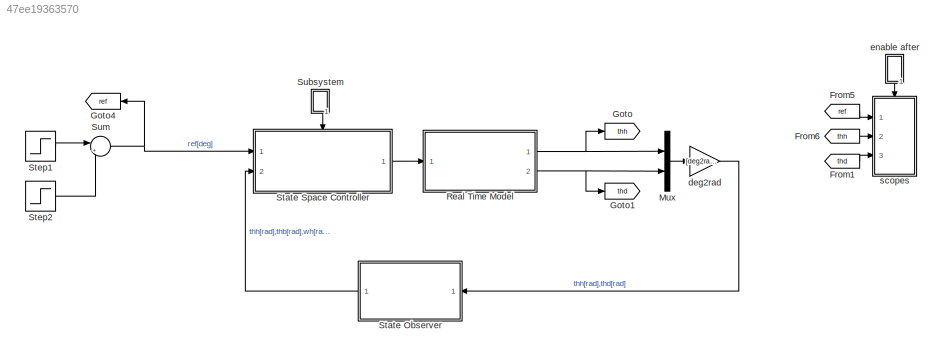
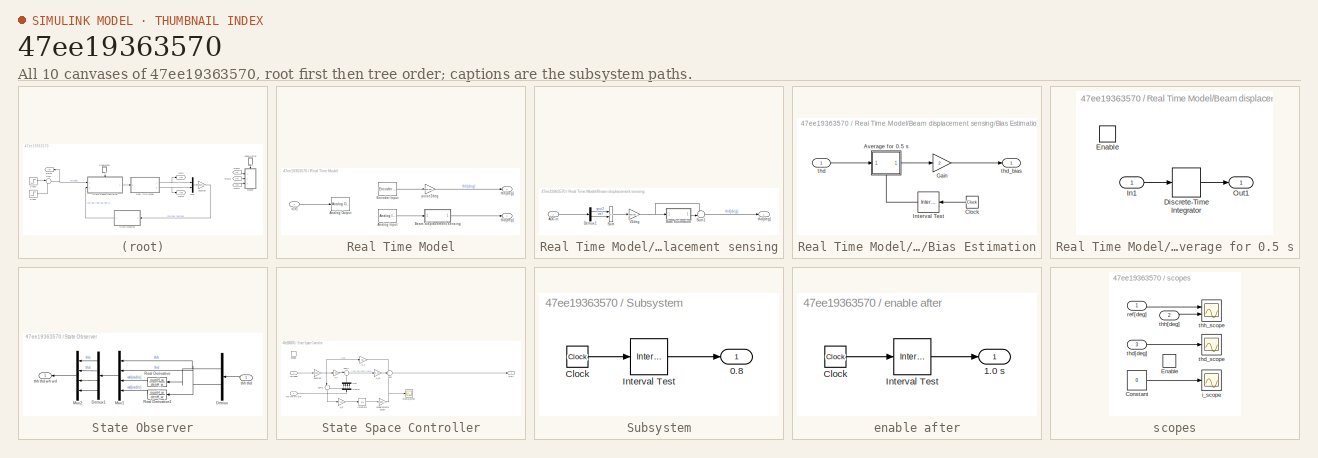
[diagram: thumbnail index - all 10 canvases of the model, root first then tree order]
MODEL slx_47ee19363570
KIND model
CONFIG AbsTol = auto
CONFIG EnableMultiTasking = off
CONFIG FixedStep = 0.001
CONFIG MaxStep = auto
CONFIG MinStep = auto
CONFIG RelTol = 1e-3
CONFIG SampleTimeConstraint = Unconstrained
CONFIG SolverName = ode3
CONFIG StartTime = 0.0
CONFIG StopTime = 5
BLOCK [From] From1
  GotoTag = thd
BLOCK [From] From5
  GotoTag = ref
BLOCK [From] From6
  GotoTag = thh
BLOCK [Goto] Goto
  GotoTag = thh
BLOCK [Goto] Goto1
  GotoTag = thd
BLOCK [Goto] Goto4
  GotoTag = ref
  NameLocation = top
BLOCK [Mux] Mux
  DisplayOption = bar
  Inputs = 2
  Ports = [2, 1]
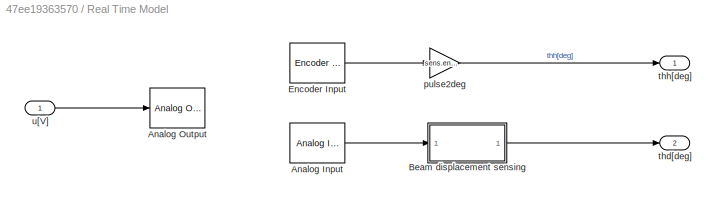
BLOCK [SubSystem] Real Time Model
  Ports = [1, 2]
  RequestExecContextInheritance = off
BLOCK [Reference] Real Time Model/Analog Input  REF=sldrtlib/Analog Input
  AttributesFormatString = National Instruments\nPCI-6221 [auto]
  Ports = [0, 1]
  SourceBlock = sldrtlib/Analog Input
  SourceProductBaseCode = WT
  SourceType = Simulink Desktop Real-Time Analog Input
BLOCK [Reference] Real Time Model/Analog Output  REF=sldrtlib/Analog Output
  AttributesFormatString = National Instruments\nPCI-6221 [auto]
  Ports = [1]
  SourceBlock = sldrtlib/Analog Output
  SourceProductBaseCode = WT
  SourceType = Simulink Desktop Real-Time Analog Output
BLOCK [SubSystem] Real Time Model/Beam displacement sensing
  Ports = [1, 1]
  RequestExecContextInheritance = off
BLOCK [Inport] Real Time Model/Beam displacement sensing/ADC in
BLOCK [SubSystem] Real Time Model/Beam displacement sensing/Bias Estimation
  Ports = [1, 1]
  RequestExecContextInheritance = off
BLOCK [SubSystem] Real Time Model/Beam displacement sensing/Bias Estimation/Average for 0.5 s
  NameLocation = top
  Ports = [1, 1, 1]
  RequestExecContextInheritance = off
BLOCK [DiscreteIntegrator] Real Time Model/Beam displacement sensing/Bias Estimation/Average for 0.5 s/Discrete-Time Integrator
  ICPrevOutput = DiscIntNeverNeededParam
  ICPrevScaledInput = DiscIntNeverNeededParam
  InitialConditionSetting = Auto
  Ports = [1, 1]
  SampleTime = Ts
BLOCK [EnablePort] Real Time Model/Beam displacement sensing/Bias Estimation/Average for 0.5 s/Enable
  Ports = []
BLOCK [Inport] Real Time Model/Beam displacement sensing/Bias Estimation/Average for 0.5 s/In1
BLOCK [Outport] Real Time Model/Beam displacement sensing/Bias Estimation/Average for 0.5 s/Out1
BLOCK [Clock] Real Time Model/Beam displacement sensing/Bias Estimation/Clock
  NameLocation = top
BLOCK [Gain] Real Time Model/Beam displacement sensing/Bias Estimation/Gain
  Gain = 2
BLOCK [Reference] Real Time Model/Beam displacement sensing/Bias Estimation/Interval Test  REF=simulink/Logic and Bit
Operations/Interval Test
  NameLocation = top
  Ports = [1, 1]
  SourceBlock = simulink/Logic and Bit\nOperations/Interval Test
  SourceProductBaseCode = SL
  SourceType = Interval Test
BLOCK [Inport] Real Time Model/Beam displacement sensing/Bias Estimation/thd
BLOCK [Outport] Real Time Model/Beam displacement sensing/Bias Estimation/thd_bias
BLOCK [Demux] Real Time Model/Beam displacement sensing/Demux1
  Outputs = 2
  Ports = [1, 2]
BLOCK [Sum] Real Time Model/Beam displacement sensing/Sum
  IconShape = rectangular
  Inputs = +-
  Ports = [2, 1]
BLOCK [Sum] Real Time Model/Beam displacement sensing/Sum1
  Inputs = +-|
  Ports = [2, 1]
BLOCK [Gain] Real Time Model/Beam displacement sensing/V2deg
  Gain = sens.pot2.V2deg
BLOCK [Outport] Real Time Model/Beam displacement sensing/thd[deg]
BLOCK [Reference] Real Time Model/Encoder Input  REF=sldrtlib/Encoder Input
  AttributesFormatString = National Instruments\nPCI-6221 [auto]
  Ports = [0, 1]
  SourceBlock = sldrtlib/Encoder Input
  SourceProductBaseCode = WT
  SourceType = Simulink Desktop Real-Time Encoder Input
BLOCK [Gain] Real Time Model/pulse2deg
  Gain = sens.enc.pulse2deg
  NameLocation = top
BLOCK [Outport] Real Time Model/thd[deg]
  Port = 2
BLOCK [Outport] Real Time Model/thh[deg]
BLOCK [Inport] Real Time Model/u[V]
BLOCK [SubSystem] State Observer
  NameLocation = top
  Ports = [1, 1]
  RequestExecContextInheritance = off
BLOCK [Demux] State Observer/Demux
  NameLocation = top
  Outputs = 2
  Ports = [1, 2]
BLOCK [Demux] State Observer/Demux1
  NameLocation = top
  Ports = [1, 4]
BLOCK [Mux] State Observer/Mux1
  DisplayOption = bar
  NameLocation = top
  Ports = [4, 1]
BLOCK [Mux] State Observer/Mux2
  DisplayOption = bar
  NameLocation = top
  Ports = [4, 1]
BLOCK [TransferFcn] State Observer/Real Derivative
  Denominator = denH_w
  NameLocation = top
  Numerator = numH_w
BLOCK [TransferFcn] State Observer/Real Derivative1
  Denominator = denH_w
  NameLocation = top
  Numerator = numH_w
BLOCK [Inport] State Observer/thh thd
  NameLocation = top
BLOCK [Outport] State Observer/thh thd wh wd
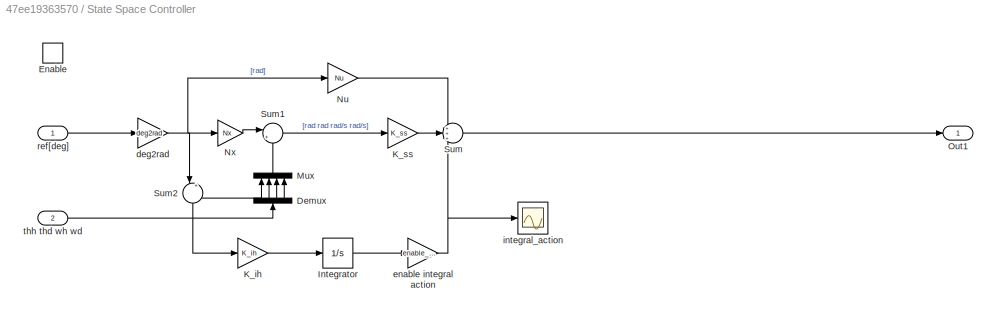
BLOCK [SubSystem] State Space Controller
  Ports = [2, 1, 1]
  RequestExecContextInheritance = off
BLOCK [Demux] State Space Controller/Demux
  NameLocation = right
  Ports = [1, 4]
BLOCK [EnablePort] State Space Controller/Enable
  Ports = []
BLOCK [Integrator] State Space Controller/Integrator
  Ports = [1, 1]
BLOCK [Gain] State Space Controller/K_ih
  Gain = K_ih
BLOCK [Gain] State Space Controller/K_ss
  Gain = K_ss
  Multiplication = Matrix(K*u) (u vector)
BLOCK [Mux] State Space Controller/Mux
  DisplayOption = bar
  NameLocation = right
  Ports = [4, 1]
BLOCK [Gain] State Space Controller/Nu
  Gain = Nu
  Multiplication = Matrix(K*u) (u vector)
BLOCK [Gain] State Space Controller/Nx
  Gain = Nx
  Multiplication = Matrix(K*u) (u vector)
BLOCK [Outport] State Space Controller/Out1
BLOCK [Sum] State Space Controller/Sum
  Inputs = +++
  Ports = [3, 1]
BLOCK [Sum] State Space Controller/Sum1
  Inputs = |+-
  Ports = [2, 1]
BLOCK [Sum] State Space Controller/Sum2
  Inputs = |+-
  NameLocation = left
  Ports = [2, 1]
BLOCK [Gain] State Space Controller/deg2rad
  Gain = deg2rad
BLOCK [Gain] State Space Controller/enable integral action
  Gain = enable_integral_action
BLOCK [Scope] State Space Controller/integral_action
  Floating = off
  NumInputPorts = 1
  Ports = [1]
  ScopeSpecificationString = Simulink.scopes.TimeScopeBlockCfg('CurrentConfiguration', extmgr.ConfigurationSet(extmgr.Configuration('Core','General UI',true),extmgr.Configuration('Core','Source UI',true),extmgr.Configuration('Sources','WiredSimulink',true,'DataLoggingVariableName','ScopeData1'),extmgr.Configuration('Visuals','Time Domain',true,'SerializedDisplays',{struct('MinYLimReal','-0.02869','MaxYLimReal','0.25824','YLab...<+1408ch>
BLOCK [Inport] State Space Controller/ref[deg]
BLOCK [Inport] State Space Controller/thh thd wh wd
  NameLocation = top
  Port = 2
BLOCK [Step] Step1
  After = step_height
  SampleTime = 0
  Time = step_start_time
BLOCK [Step] Step2
  After = -step_height
  SampleTime = 0
  Time = step_start_time+5
BLOCK [SubSystem] Subsystem
  NameLocation = left
  Ports = [0, 1]
  RequestExecContextInheritance = off
BLOCK [Outport] Subsystem/0.8
BLOCK [Clock] Subsystem/Clock
BLOCK [Reference] Subsystem/Interval Test  REF=simulink/Logic and Bit
Operations/Interval Test
  Ports = [1, 1]
  SourceBlock = simulink/Logic and Bit\nOperations/Interval Test
  SourceProductBaseCode = SL
  SourceType = Interval Test
BLOCK [Sum] Sum
  Inputs = |++
  Ports = [2, 1]
BLOCK [Gain] deg2rad
  Gain = [deg2rad 0; 0 deg2rad]
  Multiplication = Matrix(K*u) (u vector)
BLOCK [SubSystem] enable after
  NameLocation = left
  Ports = [0, 1]
  RequestExecContextInheritance = off
BLOCK [Outport] enable after/1.0 s
BLOCK [Clock] enable after/Clock
BLOCK [Reference] enable after/Interval Test  REF=simulink/Logic and Bit
Operations/Interval Test
  Ports = [1, 1]
  SourceBlock = simulink/Logic and Bit\nOperations/Interval Test
  SourceProductBaseCode = SL
  SourceType = Interval Test
BLOCK [SubSystem] scopes
  Ports = [3, 0, 1]
  RequestExecContextInheritance = off
BLOCK [Constant] scopes/Constant
  Value = 0
BLOCK [EnablePort] scopes/Enable
  Ports = []
BLOCK [Scope] scopes/i_scope
  Floating = off
  NumInputPorts = 1
  Ports = [1]
  ScopeSpecificationString = Simulink.scopes.TimeScopeBlockCfg('CurrentConfiguration', extmgr.ConfigurationSet(extmgr.Configuration('Core','General UI',true),extmgr.Configuration('Core','Source UI',true),extmgr.Configuration('Sources','WiredSimulink',true,'DataLoggingVariableName','i_scope1','DataLogging',true,'DataLoggingSaveFormat','StructureWithTime'),extmgr.Configuration('Visuals','Time Domain',true,'SerializedDisplays',{...<+1420ch>
BLOCK [Inport] scopes/ref[deg]
BLOCK [Inport] scopes/thd[deg]
  Port = 3
BLOCK [Scope] scopes/thd_scope
  Floating = off
  NumInputPorts = 1
  Ports = [1]
  ScopeSpecificationString = Simulink.scopes.TimeScopeBlockCfg('CurrentConfiguration', extmgr.ConfigurationSet(extmgr.Configuration('Core','General UI',true),extmgr.Configuration('Core','Source UI',true),extmgr.Configuration('Sources','WiredSimulink',true,'DataLoggingVariableName','thd_scope1','DataLogging',true,'DataLoggingSaveFormat','StructureWithTime'),extmgr.Configuration('Visuals','Time Domain',true,'SerializedDisplays'...<+1450ch>
BLOCK [Inport] scopes/thh[deg]
  Port = 2
BLOCK [Scope] scopes/thh_scope
  Floating = off
  NumInputPorts = 2
  Ports = [2]
  ScopeSpecificationString = Simulink.scopes.TimeScopeBlockCfg('CurrentConfiguration', extmgr.ConfigurationSet(extmgr.Configuration('Core','General UI',true),extmgr.Configuration('Core','Source UI',true),extmgr.Configuration('Sources','WiredSimulink',true,'DataLoggingVariableName','thh_scope1','DataLogging',true,'DataLoggingSaveFormat','StructureWithTime'),extmgr.Configuration('Visuals','Time Domain',true,'SerializedDisplays'...<+1448ch>
LINE From1:1 -> scopes:3
LINE From5:1 -> scopes:1
LINE From6:1 -> scopes:2
LINE Mux:1 -> deg2rad:1
LINE Real Time Model/Analog Input:1 -> Real Time Model/Beam displacement sensing:1
LINE Real Time Model/Beam displacement sensing/ADC in:1 -> Real Time Model/Beam displacement sensing/Demux1:1
LINE Real Time Model/Beam displacement sensing/Bias Estimation/Average for 0.5 s/Discrete-Time Integrator:1 -> Real Time Model/Beam displacement sensing/Bias Estimation/Average for 0.5 s/Out1:1
LINE Real Time Model/Beam displacement sensing/Bias Estimation/Average for 0.5 s/In1:1 -> Real Time Model/Beam displacement sensing/Bias Estimation/Average for 0.5 s/Discrete-Time Integrator:1
LINE Real Time Model/Beam displacement sensing/Bias Estimation/Average for 0.5 s:1 -> Real Time Model/Beam displacement sensing/Bias Estimation/Gain:1
LINE Real Time Model/Beam displacement sensing/Bias Estimation/Clock:1 -> Real Time Model/Beam displacement sensing/Bias Estimation/Interval Test:1
LINE Real Time Model/Beam displacement sensing/Bias Estimation/Gain:1 -> Real Time Model/Beam displacement sensing/Bias Estimation/thd_bias:1
LINE Real Time Model/Beam displacement sensing/Bias Estimation/Interval Test:1 -> Real Time Model/Beam displacement sensing/Bias Estimation/Average for 0.5 s:enable
LINE Real Time Model/Beam displacement sensing/Bias Estimation/thd:1 -> Real Time Model/Beam displacement sensing/Bias Estimation/Average for 0.5 s:1
LINE Real Time Model/Beam displacement sensing/Bias Estimation:1 -> Real Time Model/Beam displacement sensing/Sum1:2
LINE Real Time Model/Beam displacement sensing/Demux1:1 -> Real Time Model/Beam displacement sensing/Sum:1
LINE Real Time Model/Beam displacement sensing/Demux1:2 -> Real Time Model/Beam displacement sensing/Sum:2
LINE Real Time Model/Beam displacement sensing/Sum1:1 -> Real Time Model/Beam displacement sensing/thd[deg]:1
LINE Real Time Model/Beam displacement sensing/Sum:1 -> Real Time Model/Beam displacement sensing/V2deg:1
NET Real Time Model/Beam displacement sensing/V2deg:1 -> Real Time Model/Beam displacement sensing/Bias Estimation:1, Real Time Model/Beam displacement sensing/Sum1:1
LINE Real Time Model/Beam displacement sensing:1 -> Real Time Model/thd[deg]:1
LINE Real Time Model/Encoder Input:1 -> Real Time Model/pulse2deg:1
LINE Real Time Model/pulse2deg:1 -> Real Time Model/thh[deg]:1
LINE Real Time Model/u[V]:1 -> Real Time Model/Analog Output:1
NET Real Time Model:1 -> Goto:1, Mux:1
NET Real Time Model:2 -> Goto1:1, Mux:2
LINE State Observer/Demux1:1 -> State Observer/Mux2:1
LINE State Observer/Demux1:2 -> State Observer/Mux2:2
LINE State Observer/Demux1:3 -> State Observer/Mux2:3
LINE State Observer/Demux1:4 -> State Observer/Mux2:4
NET State Observer/Demux:1 -> State Observer/Mux1:1, State Observer/Real Derivative:1
NET State Observer/Demux:2 -> State Observer/Mux1:2, State Observer/Real Derivative1:1
LINE State Observer/Mux1:1 -> State Observer/Demux1:1
LINE State Observer/Mux2:1 -> State Observer/thh thd wh wd:1
LINE State Observer/Real Derivative1:1 -> State Observer/Mux1:4
LINE State Observer/Real Derivative:1 -> State Observer/Mux1:3
LINE State Observer/thh thd:1 -> State Observer/Demux:1
LINE State Observer:1 -> State Space Controller:2
NET State Space Controller/Demux:1 -> State Space Controller/Mux:1, State Space Controller/Sum2:2
LINE State Space Controller/Demux:2 -> State Space Controller/Mux:2
LINE State Space Controller/Demux:3 -> State Space Controller/Mux:3
LINE State Space Controller/Demux:4 -> State Space Controller/Mux:4
LINE State Space Controller/Integrator:1 -> State Space Controller/enable integral action:1
LINE State Space Controller/K_ih:1 -> State Space Controller/Integrator:1
LINE State Space Controller/K_ss:1 -> State Space Controller/Sum:2
LINE State Space Controller/Mux:1 -> State Space Controller/Sum1:2
LINE State Space Controller/Nu:1 -> State Space Controller/Sum:1
LINE State Space Controller/Nx:1 -> State Space Controller/Sum1:1
LINE State Space Controller/Sum1:1 -> State Space Controller/K_ss:1
LINE State Space Controller/Sum2:1 -> State Space Controller/K_ih:1
LINE State Space Controller/Sum:1 -> State Space Controller/Out1:1
NET State Space Controller/deg2rad:1 -> State Space Controller/Nu:1, State Space Controller/Nx:1, State Space Controller/Sum2:1
NET State Space Controller/enable integral action:1 -> State Space Controller/Sum:3, State Space Controller/integral_action:1
LINE State Space Controller/ref[deg]:1 -> State Space Controller/deg2rad:1
LINE State Space Controller/thh thd wh wd:1 -> State Space Controller/Demux:1
LINE State Space Controller:1 -> Real Time Model:1
LINE Step1:1 -> Sum:1
LINE Step2:1 -> Sum:2
LINE Subsystem/Clock:1 -> Subsystem/Interval Test:1
LINE Subsystem/Interval Test:1 -> Subsystem/0.8:1
LINE Subsystem:1 -> State Space Controller:enable
NET Sum:1 -> Goto4:1, State Space Controller:1
LINE deg2rad:1 -> State Observer:1
LINE enable after/Clock:1 -> enable after/Interval Test:1
LINE enable after/Interval Test:1 -> enable after/1.0 s:1
LINE enable after:1 -> scopes:enable
LINE scopes/Constant:1 -> scopes/i_scope:1
LINE scopes/ref[deg]:1 -> scopes/thh_scope:1
LINE scopes/thd[deg]:1 -> scopes/thd_scope:1
LINE scopes/thh[deg]:1 -> scopes/thh_scope:2
note: NET lines group one-source signal fan-out (src -> all destinations, sorted); 1:1 wires keep LINE
